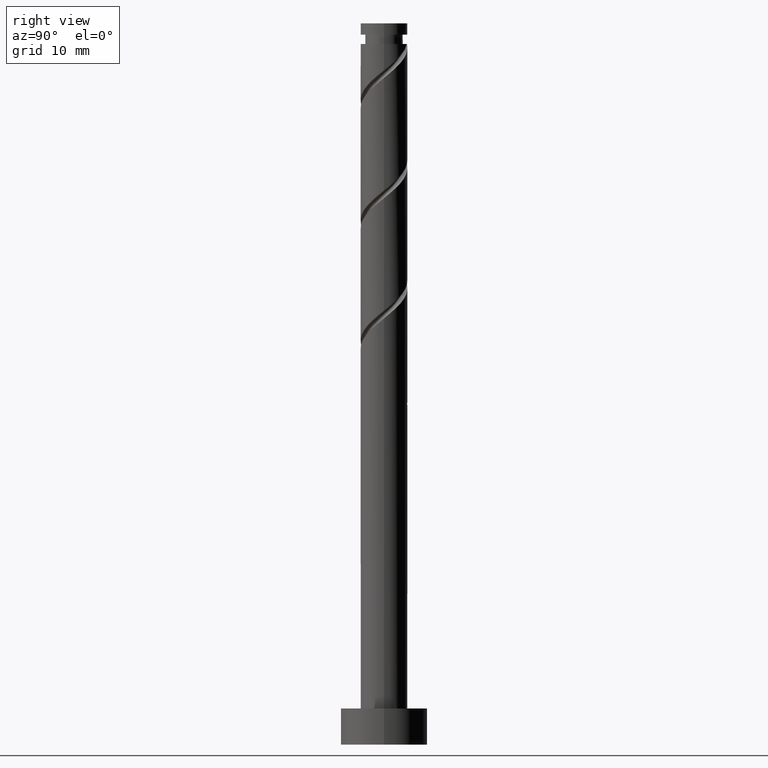
[diagram: clean part render]
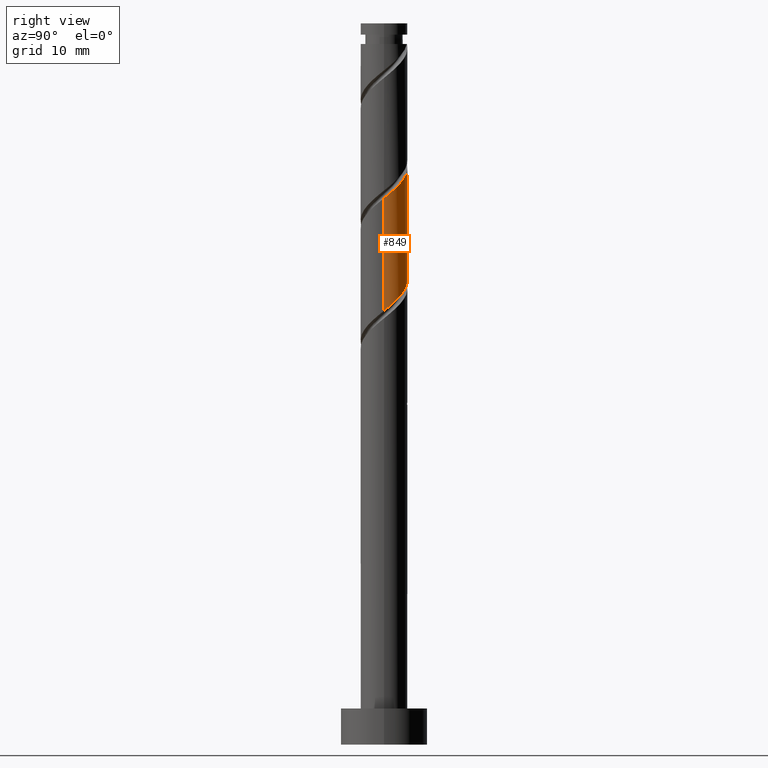
[diagram: same view with one face highlighted and labeled with its STEP entity id]
A machine part, right view. The second image highlights one B-rep face of the part: STEP entity #849.
In plain terms, the highlighted cylindrical surface (edge-blend (fillet) strip) has radius 3.25 mm, axis along (-0, -0, -1).
Its self-contained STEP definition (entity closure, byte-faithful):
#7 = LINE ( 'NONE', #958, #748 ) ;
#37 = CARTESIAN_POINT ( 'NONE',  ( 3.250000000000003109, 0.04193044157907341307, 75.80656253383735077 ) ) ;
#68 = CARTESIAN_POINT ( 'NONE',  ( 2.055359441987477442, 2.581936948845057866, 78.15525190007892320 ) ) ;
#88 = ORIENTED_EDGE ( 'NONE', *, *, #223, .T. ) ;
#122 = CARTESIAN_POINT ( 'NONE',  ( -3.234133758856098328, 0.6567188693845359415, 67.97006671489374696 ) ) ;
#157 =( BOUNDED_CURVE ( )  B_SPLINE_CURVE ( 2, ( #515, #37, #1425, #169, #832, #838, #725, #68, #953, #1215, #1189, #1093, #396, #496, #861, #1314, #962, #374, #1411, #1205, #382 ),
 .UNSPECIFIED., .F., .T. ) 
 B_SPLINE_CURVE_WITH_KNOTS ( ( 3, 2, 2, 2, 2, 2, 2, 2, 2, 2, 3 ),
 ( 0.4295248053855292292, 0.4305555555555555802, 0.4444444444444444198, 0.4583333333333333703, 0.4722222222222222099, 0.4861111111111111605, 0.5000000000000000000, 0.5138888888888888395, 0.5277777777777777901, 0.5416666666666667407, 0.5545248053855289516 ),
 .UNSPECIFIED. ) 
 CURVE ( )  GEOMETRIC_REPRESENTATION_ITEM ( )  RATIONAL_B_SPLINE_CURVE ( ( 0.9071930855141269179, 0.9080659294509745294, 0.9090909090909143897, 0.8952797754656489637, 0.9090909090909143897, 0.8952797754656489637, 0.9090909090909143897, 0.8952797754656489637, 0.9090909090909143897, 0.8952797754656489637, 0.9090909090909143897, 0.8952797754656489637, 0.9090909090909143897, 0.8952797754656489637, 0.9090909090909143897, 0.8952797754656489637, 0.9090909090909143897, 0.8952797754656489637, 0.9090909090909143897, 0.8963047551055891571, 0.9071930855141264738 ) ) 
 REPRESENTATION_ITEM ( '' )  );
#169 = CARTESIAN_POINT ( 'NONE',  ( 3.234133758856102769, 0.6567188693845357195, 76.30340004822707556 ) ) ;
#171 = DIRECTION ( 'NONE',  ( -0.000000000000000000, -0.000000000000000000, -1.000000000000000000 ) ) ;
#204 =( BOUNDED_CURVE ( )  B_SPLINE_CURVE ( 2, ( #1059, #585, #234, #122, #800, #1257, #594, #477, #336, #1264, #367, #1277, #602, #351, #1286, #227, #1270, #252, #485, #688, #702 ),
 .UNSPECIFIED., .F., .T. ) 
 B_SPLINE_CURVE_WITH_KNOTS ( ( 3, 2, 2, 2, 2, 2, 2, 2, 2, 2, 3 ),
 ( 0.6795248053855289516, 0.6805555555555555802, 0.6944444444444444198, 0.7083333333333333703, 0.7222222222222222099, 0.7361111111111111605, 0.7500000000000000000, 0.7638888888888888395, 0.7777777777777777901, 0.7916666666666666297, 0.8045248053855290626 ),
 .UNSPECIFIED. ) 
 CURVE ( )  GEOMETRIC_REPRESENTATION_ITEM ( )  RATIONAL_B_SPLINE_CURVE ( ( 0.9071930855141209227, 0.9080659294509686452, 0.9090909090909088386, 0.8952797754656434126, 0.9090909090909088386, 0.8952797754656434126, 0.9090909090909088386, 0.8952797754656434126, 0.9090909090909088386, 0.8952797754656434126, 0.9090909090909088386, 0.8952797754656434126, 0.9090909090909088386, 0.8952797754656434126, 0.9090909090909088386, 0.8952797754656434126, 0.9090909090909088386, 0.8952797754656434126, 0.9090909090909088386, 0.8963047551055834949, 0.9071930855141210337 ) ) 
 REPRESENTATION_ITEM ( '' )  );
#223 = EDGE_CURVE ( 'NONE', #890, #709, #7, .T. ) ;
#227 = CARTESIAN_POINT ( 'NONE',  ( 2.185802103459652646, 2.472482559713967909, 62.41451115933822535 ) ) ;
#234 = CARTESIAN_POINT ( 'NONE',  ( -3.248918234259666971, 0.08384692656885138484, 68.43302967785670887 ) ) ;
#252 = CARTESIAN_POINT ( 'NONE',  ( 2.899620946562940116, 1.575785267678251556, 61.48858523341228022 ) ) ;
#268 = EDGE_CURVE ( 'NONE', #548, #1353, #1389, .T. ) ;
#269 = DIRECTION ( 'NONE',  ( -0.000000000000000000, -0.000000000000000000, -1.000000000000000000 ) ) ;
#336 = CARTESIAN_POINT ( 'NONE',  ( -1.551845548691959564, 2.855569188971779582, 65.65525190007893741 ) ) ;
#351 = CARTESIAN_POINT ( 'NONE',  ( 1.208343267675763721, 3.070961965091888235, 63.34043708526414207 ) ) ;
#366 = AXIS2_PLACEMENT_3D ( 'NONE', #1316, #171, #1095 ) ;
#367 = CARTESIAN_POINT ( 'NONE',  ( -0.4815956274168023410, 3.214119732003307917, 64.72932597415301359 ) ) ;
#374 = CARTESIAN_POINT ( 'NONE',  ( -2.899620946562942780, 1.575785267678254664, 82.78488152970857072 ) ) ;
#382 = CARTESIAN_POINT ( 'NONE',  ( -3.250000000000003997, -1.277281639759410658E-15, 84.10587849323833609 ) ) ;
#396 = CARTESIAN_POINT ( 'NONE',  ( -0.6467418341193023057, 3.185000000000004938, 80.47006671489377538 ) ) ;
#440 = CARTESIAN_POINT ( 'NONE',  ( 3.250000000000003997, -2.972854342831843990E-15, 75.77254515990500749 ) ) ;
#465 = DIRECTION ( 'NONE',  ( -0.000000000000000000, -0.000000000000000000, -1.000000000000000000 ) ) ;
#477 = CARTESIAN_POINT ( 'NONE',  ( -2.055359441987473890, 2.581936948845055646, 66.11821486304191353 ) ) ;
#485 = CARTESIAN_POINT ( 'NONE',  ( 3.081661828113087864, 1.032405141962543516, 61.02562227044930410 ) ) ;
#496 = CARTESIAN_POINT ( 'NONE',  ( -1.208343267675764166, 3.070961965091892232, 80.93302967785670887 ) ) ;
#515 = CARTESIAN_POINT ( 'NONE',  ( 3.250000000000003997, -2.972854342831843990E-15, 75.77254515990500749 ) ) ;
#548 = VERTEX_POINT ( 'NONE', #1222 ) ;
#564 = ORIENTED_EDGE ( 'NONE', *, *, #1185, .F. ) ;
#585 = CARTESIAN_POINT ( 'NONE',  ( -3.249999999999999112, 0.04193044157906276187, 68.46690422928345754 ) ) ;
#594 = CARTESIAN_POINT ( 'NONE',  ( -2.434919993993786225, 2.152594858037457204, 66.58117782600486123 ) ) ;
#602 = CARTESIAN_POINT ( 'NONE',  ( 0.6467418341193033049, 3.185000000000000497, 63.80340004822709687 ) ) ;
#688 = CARTESIAN_POINT ( 'NONE',  ( 3.250000000000000000, 0.5299267084164830388, 60.59750778224813672 ) ) ;
#702 = CARTESIAN_POINT ( 'NONE',  ( 3.250000000000000000, 8.664600597198394724E-16, 60.16758826988252196 ) ) ;
#709 = VERTEX_POINT ( 'NONE', #1380 ) ;
#721 = CARTESIAN_POINT ( 'NONE',  ( -3.250000000000000444, 0.000000000000000000, 100.0000000000000000 ) ) ;
#725 = CARTESIAN_POINT ( 'NONE',  ( 2.434919993993788889, 2.152594858037460313, 77.69228893711598971 ) ) ;
#748 = VECTOR ( 'NONE', #465, 1000.000000000000000 ) ;
#796 = ORIENTED_EDGE ( 'NONE', *, *, #1446, .F. ) ;
#800 = CARTESIAN_POINT ( 'NONE',  ( -3.024307152428097556, 1.189985818307198073, 67.50710375193079926 ) ) ;
#832 = CARTESIAN_POINT ( 'NONE',  ( 3.024307152428101997, 1.189985818307197629, 76.76636301119005168 ) ) ;
#838 = CARTESIAN_POINT ( 'NONE',  ( 2.814480546000102557, 1.723252767229859206, 77.22932597415301359 ) ) ;
#849 = ADVANCED_FACE ( 'NONE', ( #1414 ), #872, .T. ) ;
#853 = EDGE_LOOP ( 'NONE', ( #796, #88, #564, #1463 ) ) ;
#861 = CARTESIAN_POINT ( 'NONE',  ( -1.697072685567709183, 2.771722262402933623, 81.39599264081969920 ) ) ;
#872 = CYLINDRICAL_SURFACE ( 'NONE', #366, 3.250000000000000444 ) ;
#890 = VERTEX_POINT ( 'NONE', #440 ) ;
#951 = VECTOR ( 'NONE', #269, 1000.000000000000000 ) ;
#953 = CARTESIAN_POINT ( 'NONE',  ( 1.551845548691964227, 2.855569188971783134, 78.61821486304191353 ) ) ;
#958 = CARTESIAN_POINT ( 'NONE',  ( 3.250000000000000444, 3.980102097228898231E-16, 100.0000000000000000 ) ) ;
#962 = CARTESIAN_POINT ( 'NONE',  ( -2.542711525011298157, 2.024133913696113840, 82.32191856674563724 ) ) ;
#969 = CARTESIAN_POINT ( 'NONE',  ( -3.249999999999999112, -2.106394283112023450E-15, 68.50092160321584345 ) ) ;
#1059 = CARTESIAN_POINT ( 'NONE',  ( -3.249999999999999112, -2.106394283112023844E-15, 68.50092160321584345 ) ) ;
#1093 = CARTESIAN_POINT ( 'NONE',  ( -0.08514040056284101488, 3.299038034908115424, 80.00710375193075663 ) ) ;
#1095 = DIRECTION ( 'NONE',  ( -1.000000000000000000, 0.000000000000000000, 0.000000000000000000 ) ) ;
#1185 = EDGE_CURVE ( 'NONE', #1353, #709, #204, .T. ) ;
#1189 = CARTESIAN_POINT ( 'NONE',  ( 0.4815956274168060047, 3.214119732003312802, 79.54414078896782314 ) ) ;
#1205 = CARTESIAN_POINT ( 'NONE',  ( -3.250000000000002665, 0.5299267084164908104, 83.67595898087269290 ) ) ;
#1215 = CARTESIAN_POINT ( 'NONE',  ( 1.048331655396449902, 3.129201429098508402, 79.08117782600483281 ) ) ;
#1222 = CARTESIAN_POINT ( 'NONE',  ( -3.250000000000003997, -1.277281639759410658E-15, 84.10587849323835030 ) ) ;
#1257 = CARTESIAN_POINT ( 'NONE',  ( -2.814480546000096783, 1.723252767229860094, 67.04414078896783735 ) ) ;
#1264 = CARTESIAN_POINT ( 'NONE',  ( -1.048331655396446127, 3.129201429098504406, 65.19228893711598971 ) ) ;
#1270 = CARTESIAN_POINT ( 'NONE',  ( 2.542711525011295937, 2.024133913696109399, 61.95154819637523502 ) ) ;
#1277 = CARTESIAN_POINT ( 'NONE',  ( 0.08514040056284158386, 3.299038034908111872, 64.26636301119006589 ) ) ;
#1286 = CARTESIAN_POINT ( 'NONE',  ( 1.697072685567709849, 2.771722262402927406, 62.87747412230114463 ) ) ;
#1314 = CARTESIAN_POINT ( 'NONE',  ( -2.185802103459653978, 2.472482559713971906, 81.85895560378263269 ) ) ;
#1316 = CARTESIAN_POINT ( 'NONE',  ( 0.000000000000000000, 0.000000000000000000, 100.0000000000000000 ) ) ;
#1353 = VERTEX_POINT ( 'NONE', #969 ) ;
#1380 = CARTESIAN_POINT ( 'NONE',  ( 3.250000000000000000, 8.664600597198394724E-16, 60.16758826988252196 ) ) ;
#1389 = LINE ( 'NONE', #721, #951 ) ;
#1411 = CARTESIAN_POINT ( 'NONE',  ( -3.081661828113093193, 1.032405141962545070, 83.24784449267153263 ) ) ;
#1414 = FACE_OUTER_BOUND ( 'NONE', #853, .T. ) ;
#1425 = CARTESIAN_POINT ( 'NONE',  ( 3.248918234259671856, 0.08384692656885095463, 75.84043708526411365 ) ) ;
#1446 = EDGE_CURVE ( 'NONE', #890, #548, #157, .T. ) ;
#1463 = ORIENTED_EDGE ( 'NONE', *, *, #268, .F. ) ;